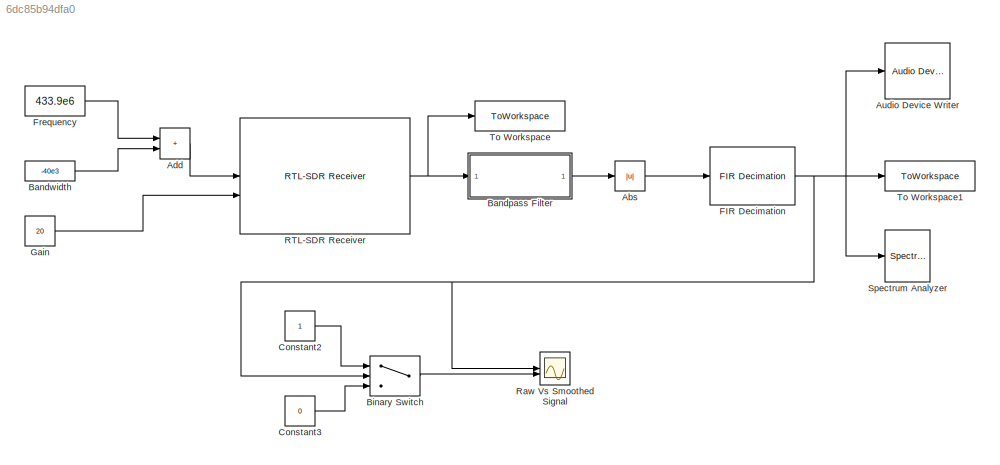
MODEL slx_6dc85b94dfa0
KIND model
CONFIG AbsTol = auto
CONFIG EnableMultiTasking = off
CONFIG FixedStep = auto
CONFIG MaxStep = auto
CONFIG MinStep = auto
CONFIG RelTol = 1e-3
CONFIG SampleTimeConstraint = Unconstrained
CONFIG SolverName = VariableStepAuto
CONFIG StartTime = 0.0
CONFIG StopTime = 20
BLOCK [Abs] Abs
  SaturateOnIntegerOverflow = off
BLOCK [Sum] Add
  IconShape = rectangular
BLOCK [Reference] Audio Device Writer  REF=dspsnks4/Audio Device
Writer
  SourceBlock = dspsnks4/Audio Device\nWriter
  SourceType = Audio Device Writer
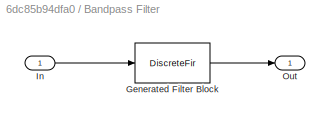
BLOCK [SubSystem] Bandpass Filter
  CopyFcn = fdesignblkfcn(gcbh, {'CopyFcn'});
  DialogController = fdesignblkfcn
  InitFcn = fdesignblkfcn(gcbh, {'InitFcn'});
  UserDataPersistent = on
BLOCK [DiscreteFir] Bandpass Filter/Generated Filter Block
  Coefficients = [0.0024383680654391322 -0.00249048448723352116 0.000829618158799000707 0.000757639909411926137 -0.00297439999954760264 -0.00569567554311764448 -0.00287769587371433525 0.00202335772559120251 0.00233106594051531689 -0.000272122046722714206 0.0012989807907630524 0.00555508782838593472 0.00373686660212212965 -0.00370775607690403434 -0.00613059502047849127 -0.00156733498646653029 -0.0006454198175578203...<+1924ch>
  InputPortMap = u0
  InputProcessing = Columns as channels (frame based)
  OutputPortMap = o0
  Tag = BlockMethodSubSystem
BLOCK [Inport] Bandpass Filter/In
BLOCK [Outport] Bandpass Filter/Out
  VectorParamsAs1DForOutWhenUnconnected = off
BLOCK [Constant] Bandwidth
  Value = -40e3
BLOCK [Switch] Binary Switch
  Criteria = u2 > Threshold
  SaturateOnIntegerOverflow = off
  Threshold = .05
BLOCK [Constant] Constant2
BLOCK [Constant] Constant3
  Value = 0
BLOCK [Reference] FIR Decimation  REF=dspmlti4/FIR
Decimation
  LibrarySourceBlock = dsphdlsupportfiltering/FIR\nDecimation
  SourceBlock = dspmlti4/FIR\nDecimation
  SourceType = FIR Decimation
  UserDataPersistent = on
BLOCK [Constant] Frequency
  Value = 433.9e6
BLOCK [Constant] Gain
  Value = 20
BLOCK [Reference] RTL-SDR Receiver  REF=sdrrlib/RTL-SDR
Receiver
  SourceBlock = sdrrlib/RTL-SDR\nReceiver
  SourceType = RTL-SDR Receiver
BLOCK [Scope] Raw Vs Smoothed Signal
  DefaultConfigurationName = spbscopes.TimeScopeBlockCfg
  Floating = off
  NumInputPorts = 2
  ScopeSpecificationString = spbscopes.TimeScopeBlockCfg('CurrentConfiguration', extmgr.ConfigurationSet(extmgr.Configuration('Core','General UI',true),extmgr.Configuration('Core','Source UI',true),extmgr.Configuration('Sources','WiredSimulink',true,'DataLoggingVariableName','ScopeData1'),extmgr.Configuration('Visuals','Time Domain',true,'DisplayLayoutDimensions',[2 1],'DisplayPropertyDefaults',struct('YLabelReal','Amplitude'...<+2121ch>
  UserDataPersistent = on
BLOCK [SpectrumAnalyzer] Spectrum Analyzer
  ScopeSpecificationString = spbscopes.SpectrumAnalyzerBlockCfg('CurrentConfiguration', extmgr.ConfigurationSet(extmgr.Configuration('Core','General UI',true),extmgr.Configuration('Core','Source UI',true),extmgr.Configuration('Sources','WiredSimulink',true),extmgr.Configuration('Visuals','Spectrum',true,'AxesProperties',struct('Color',{[0 0 0],[0 0 0]},'XColor',{[0.686274509803922 0.686274509803922 0.686274509803922],[0.68627...<+1846ch>
BLOCK [ToWorkspace] To Workspace
  FixptAsFi = on
  MaxDataPoints = inf
  SampleTime = -1
  Save2DSignal = 2-D array (concatenate along first dimension)
  VariableName = Raw_Complex
BLOCK [ToWorkspace] To Workspace1
  FixptAsFi = on
  MaxDataPoints = inf
  SampleTime = -1
  SaveFormat = Timeseries
  VariableName = Raw_Signal
LINE Abs:1 -> FIR Decimation:1
LINE Add:1 -> RTL-SDR Receiver:1
LINE Bandpass Filter:1 -> Abs:1
LINE Bandwidth:1 -> Add:2
LINE Binary Switch:1 -> Raw Vs Smoothed Signal:2
LINE Constant2:1 -> Binary Switch:1
LINE Constant3:1 -> Binary Switch:3
NET FIR Decimation:1 -> Audio Device Writer:1, Binary Switch:2, Raw Vs Smoothed Signal:1, Spectrum Analyzer:1, To Workspace1:1
LINE Frequency:1 -> Add:1
LINE Gain:1 -> RTL-SDR Receiver:2
NET RTL-SDR Receiver:1 -> Bandpass Filter:1, To Workspace:1
note: NET lines group one-source signal fan-out (src -> all destinations, sorted); 1:1 wires keep LINE
